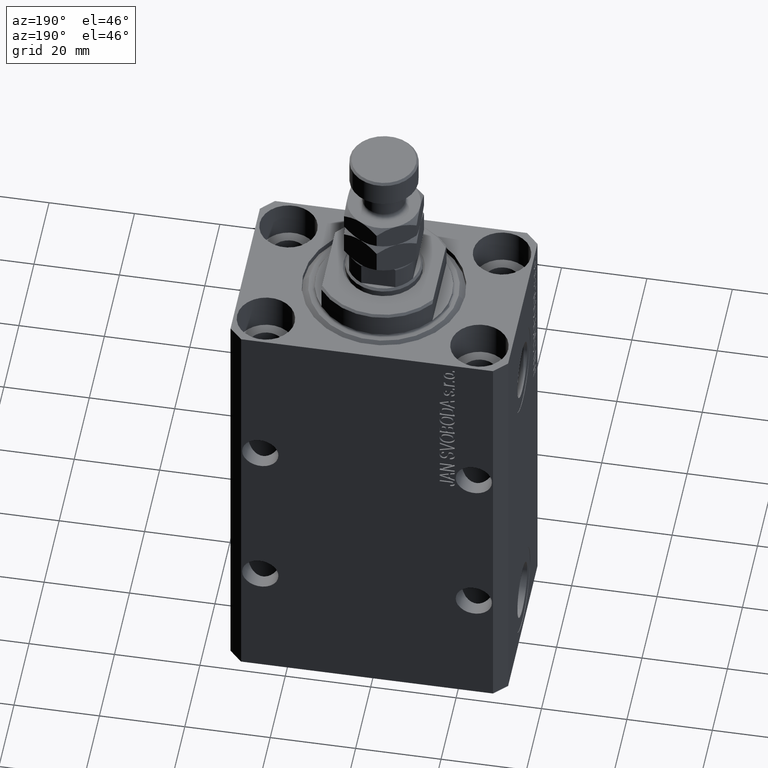
[diagram: clean part render]
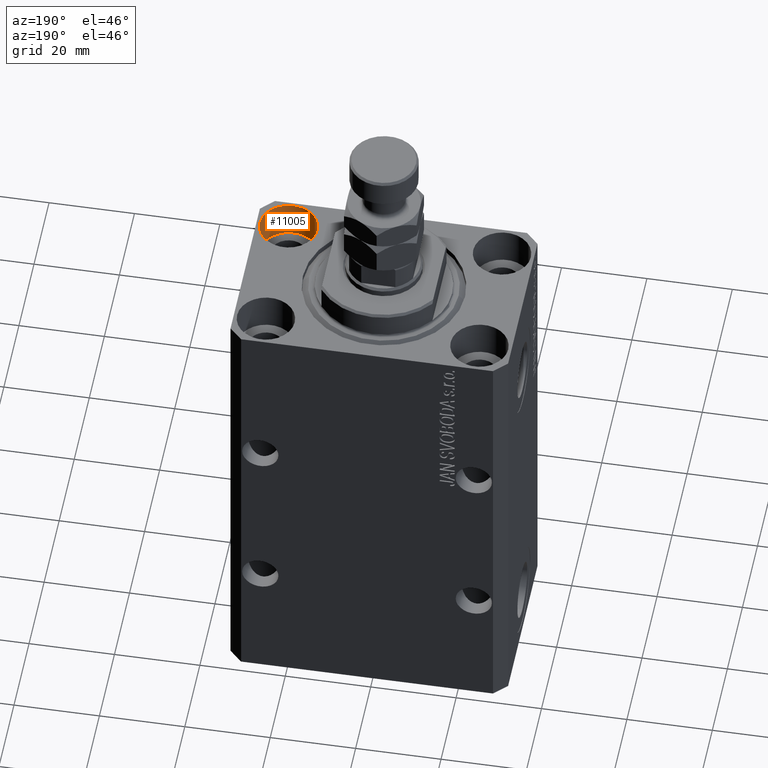
[diagram: same view with one face highlighted and labeled with its STEP entity id]
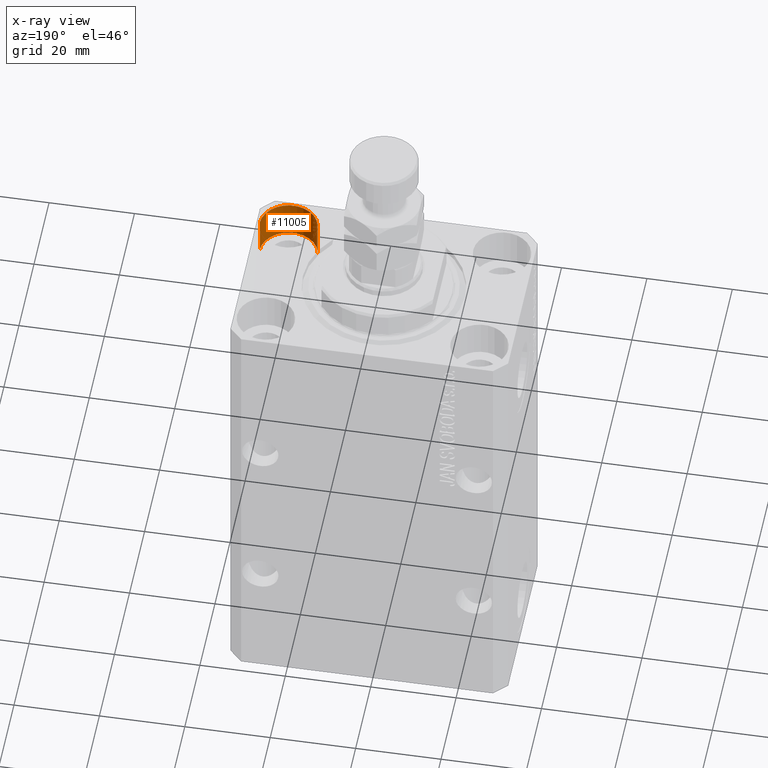
[diagram: x-ray of the same camera — body ghosted, the highlighted face saturated]
A machine part, auxiliary view. The second image highlights one B-rep face of the part: STEP entity #11005.
The next image is the same camera in x-ray: the body ghosted, the highlighted face saturated — about 0% of this face is hidden behind the body in this view.
In plain terms, the highlighted cylindrical surface (edge-blend (fillet) strip) has radius 6.75 mm, axis along (0, 0, 1).
Its self-contained STEP definition (entity closure, byte-faithful):
#489 = CIRCLE ( 'NONE', #23335, 6.749999999977465137 ) ;
#2493 = ORIENTED_EDGE ( 'NONE', *, *, #12502, .F. ) ;
#2798 = CIRCLE ( 'NONE', #29447, 6.749999999977465137 ) ;
#4332 = CYLINDRICAL_SURFACE ( 'NONE', #21058, 6.749999999977465137 ) ;
#5169 = CARTESIAN_POINT ( 'NONE',  ( 18.25000000002253842, -15.00000000000000000, -9.000000000000000000 ) ) ;
#8155 = DIRECTION ( 'NONE',  ( -0.000000000000000000, -0.000000000000000000, 1.000000000000000000 ) ) ;
#8622 = DIRECTION ( 'NONE',  ( -0.000000000000000000, -0.000000000000000000, 1.000000000000000000 ) ) ;
#9101 = CARTESIAN_POINT ( 'NONE',  ( 18.25000000002253842, -15.00000000000000000, 0.000000000000000000 ) ) ;
#11005 = ADVANCED_FACE ( 'NONE', ( #18190 ), #4332, .F. ) ;
#12502 = EDGE_CURVE ( 'NONE', #29258, #26678, #40578, .T. ) ;
#14794 = CARTESIAN_POINT ( 'NONE',  ( 31.74999999997746869, -15.00000000000000000, -9.000000000000000000 ) ) ;
#15543 = CARTESIAN_POINT ( 'NONE',  ( 18.25000000002253842, -15.00000000000000000, -9.000000000000000000 ) ) ;
#18053 = ORIENTED_EDGE ( 'NONE', *, *, #31948, .T. ) ;
#18190 = FACE_OUTER_BOUND ( 'NONE', #36850, .T. ) ;
#21058 = AXIS2_PLACEMENT_3D ( 'NONE', #29377, #28681, #36741 ) ;
#23335 = AXIS2_PLACEMENT_3D ( 'NONE', #42815, #36381, #33035 ) ;
#23336 = ORIENTED_EDGE ( 'NONE', *, *, #28994, .T. ) ;
#24193 = DIRECTION ( 'NONE',  ( 0.000000000000000000, 0.000000000000000000, 1.000000000000000000 ) ) ;
#25808 = CARTESIAN_POINT ( 'NONE',  ( 31.74999999997746869, -15.00000000000000000, 0.000000000000000000 ) ) ;
#26292 = LINE ( 'NONE', #15543, #37664 ) ;
#26678 = VERTEX_POINT ( 'NONE', #25808 ) ;
#28000 = VECTOR ( 'NONE', #8622, 1000.000000000000000 ) ;
#28681 = DIRECTION ( 'NONE',  ( -0.000000000000000000, -0.000000000000000000, 1.000000000000000000 ) ) ;
#28994 = EDGE_CURVE ( 'NONE', #40438, #29135, #26292, .T. ) ;
#29135 = VERTEX_POINT ( 'NONE', #9101 ) ;
#29258 = VERTEX_POINT ( 'NONE', #14794 ) ;
#29377 = CARTESIAN_POINT ( 'NONE',  ( 25.00000000000000355, -15.00000000000000000, -9.000000000000000000 ) ) ;
#29447 = AXIS2_PLACEMENT_3D ( 'NONE', #38708, #24193, #35124 ) ;
#31948 = EDGE_CURVE ( 'NONE', #29135, #26678, #489, .T. ) ;
#32658 = EDGE_CURVE ( 'NONE', #40438, #29258, #2798, .T. ) ;
#33035 = DIRECTION ( 'NONE',  ( 1.000000000000000000, 0.000000000000000000, 0.000000000000000000 ) ) ;
#35124 = DIRECTION ( 'NONE',  ( 1.000000000000000000, 0.000000000000000000, 0.000000000000000000 ) ) ;
#36381 = DIRECTION ( 'NONE',  ( 0.000000000000000000, 0.000000000000000000, 1.000000000000000000 ) ) ;
#36741 = DIRECTION ( 'NONE',  ( 1.000000000000000000, 0.000000000000000000, 0.000000000000000000 ) ) ;
#36850 = EDGE_LOOP ( 'NONE', ( #46433, #23336, #18053, #2493 ) ) ;
#37664 = VECTOR ( 'NONE', #8155, 1000.000000000000000 ) ;
#38708 = CARTESIAN_POINT ( 'NONE',  ( 25.00000000000000355, -15.00000000000000000, -9.000000000000000000 ) ) ;
#40438 = VERTEX_POINT ( 'NONE', #5169 ) ;
#40578 = LINE ( 'NONE', #44628, #28000 ) ;
#42815 = CARTESIAN_POINT ( 'NONE',  ( 25.00000000000000355, -15.00000000000000000, 0.000000000000000000 ) ) ;
#44628 = CARTESIAN_POINT ( 'NONE',  ( 31.74999999997746869, -15.00000000000000000, -9.000000000000000000 ) ) ;
#46433 = ORIENTED_EDGE ( 'NONE', *, *, #32658, .F. ) ;